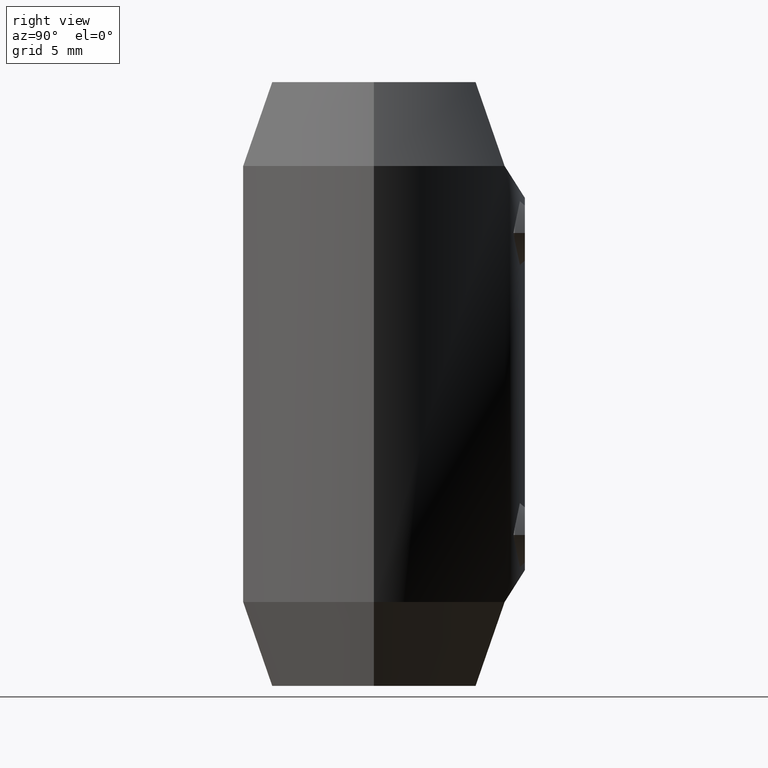
[diagram: clean part render]
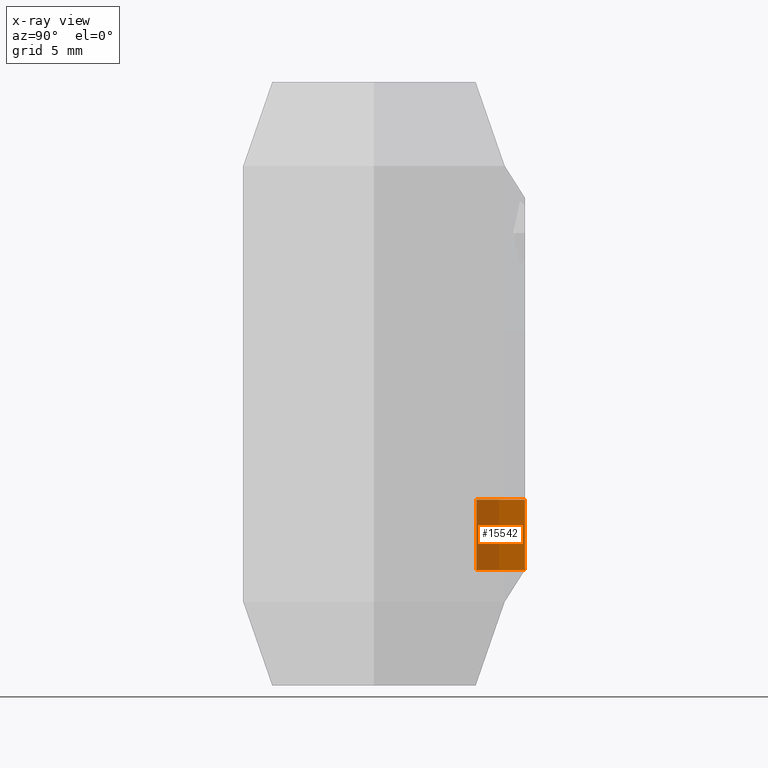
[diagram: x-ray — body ghosted, one internal face saturated and labeled with its STEP entity id]
A machine part, right view, then the same camera in x-ray: the body is ghosted and one INTERNAL B-rep face — a face not visible from any outside direction — is saturated and labeled: STEP entity #15542.
In plain terms, the highlighted cylindrical surface (edge-blend (fillet) strip) has radius 2.1 mm, axis along (0, 1, 0).
Its self-contained STEP definition (entity closure, byte-faithful):
#282 = CARTESIAN_POINT ( 'NONE',  ( -1.991972582969570915, 5.765862643259869635, -9.679045374295219162 ) ) ;
#335 = CARTESIAN_POINT ( 'NONE',  ( -3.611607927376616936E-15, 6.099999999999999645, -6.900000000000001243 ) ) ;
#399 = CARTESIAN_POINT ( 'NONE',  ( -0.1398720103953934868, 6.100000000000001421, -6.900000000000002132 ) ) ;
#403 = EDGE_CURVE ( 'NONE', #14587, #1762, #14515, .T. ) ;
#450 = CARTESIAN_POINT ( 'NONE',  ( -1.283287939962843405, 5.964603744288758946, -10.66786846278035483 ) ) ;
#1005 = CARTESIAN_POINT ( 'NONE',  ( -2.086513239613602355, 8.754840634587448989, -8.725048273204425442 ) ) ;
#1108 = CARTESIAN_POINT ( 'NONE',  ( -2.099943563489800269, 8.751584829818270350, -8.861637844470349634 ) ) ;
#1283 = B_SPLINE_CURVE_WITH_KNOTS ( 'NONE', 3,
 ( #9967, #15140, #4040, #1615, #9112, #3934, #7733, #450, #15293, #6631, #14056, #282, #4147, #1517, #12663, #6572, #2884, #12608, #15239, #10230, #1671, #11428, #13847, #10288, #2942, #5340, #10399, #7792, #399, #335 ),
 .UNSPECIFIED., .F., .F.,
 ( 4, 2, 2, 2, 2, 2, 2, 2, 2, 2, 2, 2, 2, 2, 4 ),
 ( 0.006616579734925386209, 0.007030014291512964170, 0.007443448848100541262, 0.007856883404688120090, 0.008270317961275697183, 0.009097187074450856573, 0.009510621631038437135, 0.009924056187626015962, 0.01033749074421359652, 0.01075092530080117535, 0.01157779441397633474, 0.01199122897056391357, 0.01240466352715149240, 0.01281809808373907296, 0.01323153264032665179 ),
 .UNSPECIFIED. ) ;
#1367 = CARTESIAN_POINT ( 'NONE',  ( -3.049785664642882860E-15, 6.099999999999999645, -11.09999999999999787 ) ) ;
#1517 = CARTESIAN_POINT ( 'NONE',  ( -2.086023711472762887, 5.732305899723283638, -9.278240127168162488 ) ) ;
#1615 = CARTESIAN_POINT ( 'NONE',  ( -0.5490742274861850625, 6.076771396057661256, -11.03170151540581934 ) ) ;
#1663 = VERTEX_POINT ( 'NONE', #8315 ) ;
#1671 = CARTESIAN_POINT ( 'NONE',  ( -1.677514676781607372, 5.868161944235677829, -7.707696466543613845 ) ) ;
#1762 = VERTEX_POINT ( 'NONE', #14879 ) ;
#2068 = CARTESIAN_POINT ( 'NONE',  ( -3.049370529876909686E-15, 11.00000000000000000, -11.09999999999999787 ) ) ;
#2239 = CARTESIAN_POINT ( 'NONE',  ( -1.679477079426144437, 8.844114957262966925, -10.29043885399485170 ) ) ;
#2295 = CARTESIAN_POINT ( 'NONE',  ( -1.992583815650146750, 8.776818335132283266, -9.677230764306219868 ) ) ;
#2557 = CARTESIAN_POINT ( 'NONE',  ( -3.284583562078037481E-15, 8.999999999999998224, -6.900000000000001243 ) ) ;
#2639 = DIRECTION ( 'NONE',  ( -0.000000000000000000, 1.000000000000000000, -0.000000000000000000 ) ) ;
#2884 = CARTESIAN_POINT ( 'NONE',  ( -2.086402656800276478, 5.732168553545289313, -8.724116958090908369 ) ) ;
#2892 = FACE_OUTER_BOUND ( 'NONE', #8310, .T. ) ;
#2942 = CARTESIAN_POINT ( 'NONE',  ( -0.9347785483951039920, 6.029313812940078066, -7.114491996646135519 ) ) ;
#3574 = CARTESIAN_POINT ( 'NONE',  ( -0.6779847307117615740, 8.975330091746489103, -10.99228251151783375 ) ) ;
#3934 = CARTESIAN_POINT ( 'NONE',  ( -0.9339188668850350039, 6.029439983906691225, -10.88590694804221748 ) ) ;
#4040 = CARTESIAN_POINT ( 'NONE',  ( -0.2766940387029595549, 6.095250078231439161, -11.08632067619963379 ) ) ;
#4147 = CARTESIAN_POINT ( 'NONE',  ( -2.031921486498735607, 5.751705914381727958, -9.547912005615797781 ) ) ;
#4769 = CARTESIAN_POINT ( 'NONE',  ( -0.9316293612701153082, 8.952557192451092050, -10.88703991319673747 ) ) ;
#4825 = CARTESIAN_POINT ( 'NONE',  ( -0.2767516183469454494, 8.996761130966875797, -11.08624142019772663 ) ) ;
#5225 = ORIENTED_EDGE ( 'NONE', *, *, #403, .T. ) ;
#5340 = CARTESIAN_POINT ( 'NONE',  ( -0.6806303671474535077, 6.063264656335430658, -7.008595051585975177 ) ) ;
#5830 = CYLINDRICAL_SURFACE ( 'NONE', #10246, 2.099999999999997868 ) ;
#5957 = CARTESIAN_POINT ( 'NONE',  ( -3.284583562078037481E-15, 8.999999999999998224, -6.900000000000001243 ) ) ;
#6018 = CARTESIAN_POINT ( 'NONE',  ( -0.5470401376359104173, 8.984378074955957416, -11.03217661865831900 ) ) ;
#6168 = CARTESIAN_POINT ( 'NONE',  ( -1.834002307007757793, 8.811819161734465666, -10.05951055678787220 ) ) ;
#6572 = CARTESIAN_POINT ( 'NONE',  ( -2.099973329607419448, 5.727138204700679580, -8.861218232586990595 ) ) ;
#6631 = CARTESIAN_POINT ( 'NONE',  ( -1.679304693986150676, 5.867701162687668948, -10.29042708851553201 ) ) ;
#6935 = EDGE_CURVE ( 'NONE', #15095, #1762, #8298, .T. ) ;
#7266 = CARTESIAN_POINT ( 'NONE',  ( -3.049369482360552843E-15, 8.999999999999998224, -11.09999999999999787 ) ) ;
#7612 = DIRECTION ( 'NONE',  ( 0.000000000000000000, 0.000000000000000000, 1.000000000000000000 ) ) ;
#7733 = CARTESIAN_POINT ( 'NONE',  ( -1.056699912769348604, 6.008886008037662485, -10.81988967806969448 ) ) ;
#7792 = CARTESIAN_POINT ( 'NONE',  ( -0.2772286848274425064, 6.095194765550284721, -6.913844805152664641 ) ) ;
#7806 = ORIENTED_EDGE ( 'NONE', *, *, #9728, .F. ) ;
#8082 = DIRECTION ( 'NONE',  ( -0.000000000000000000, 1.000000000000000000, -0.000000000000000000 ) ) ;
#8298 = B_SPLINE_CURVE_WITH_KNOTS ( 'NONE', 3,
 ( #5957, #14736, #10923, #14635, #9782, #12202, #15876, #14789, #8533, #12353, #8591, #16028, #8476, #1005, #1108, #13602, #9729, #12256, #2295, #6168, #2239, #14835, #9821, #10976, #4769, #3574, #6018, #4825, #14681, #7266 ),
 .UNSPECIFIED., .F., .F.,
 ( 4, 2, 2, 2, 2, 2, 2, 2, 2, 2, 2, 2, 2, 2, 4 ),
 ( 2.133275734245097971E-20, 0.0004117705123801819532, 0.0008235410247603639064, 0.001235311537140545805, 0.001647082049520727813, 0.002470623074281093779, 0.002882393586661277304, 0.003294164099041460830, 0.003705934611421643921, 0.004117705123801827446, 0.004941246148562189293, 0.005353016660942371517, 0.005764787173322554609, 0.006176557685702737700, 0.006588328198082919925 ),
 .UNSPECIFIED. ) ;
#8310 = EDGE_LOOP ( 'NONE', ( #7806, #5225, #12893, #14383 ) ) ;
#8315 = CARTESIAN_POINT ( 'NONE',  ( -3.611607927376616936E-15, 6.099999999999999645, -6.900000000000001243 ) ) ;
#8476 = CARTESIAN_POINT ( 'NONE',  ( -2.032416657549456662, 8.767556932590853336, -8.453723072731227361 ) ) ;
#8533 = CARTESIAN_POINT ( 'NONE',  ( -1.388870823506893393, 8.892727693654389753, -7.418967684159895271 ) ) ;
#8591 = CARTESIAN_POINT ( 'NONE',  ( -1.834552045170093848, 8.811693943136452489, -7.942089845858673947 ) ) ;
#9112 = CARTESIAN_POINT ( 'NONE',  ( -0.6804258870561684658, 6.063280595657798422, -10.99144924083481278 ) ) ;
#9710 = VECTOR ( 'NONE', #2639, 1000.000000000000000 ) ;
#9728 = EDGE_CURVE ( 'NONE', #14587, #1663, #1283, .T. ) ;
#9729 = CARTESIAN_POINT ( 'NONE',  ( -2.086273663307478543, 8.754897343847833469, -9.276360657184758551 ) ) ;
#9782 = CARTESIAN_POINT ( 'NONE',  ( -0.6788506439432945294, 8.975268029849280182, -7.007992474951221240 ) ) ;
#9821 = CARTESIAN_POINT ( 'NONE',  ( -1.281731857945850095, 8.908999664385762074, -10.66908080314085083 ) ) ;
#9967 = CARTESIAN_POINT ( 'NONE',  ( -3.049785664642882860E-15, 6.099999999999999645, -11.09999999999999787 ) ) ;
#9997 = CARTESIAN_POINT ( 'NONE',  ( -3.306546357697853339E-15, 11.00000000000000000, -9.000000000000000000 ) ) ;
#10230 = CARTESIAN_POINT ( 'NONE',  ( -1.833274319890804138, 5.819058143546866901, -7.939764001563725415 ) ) ;
#10246 = AXIS2_PLACEMENT_3D ( 'NONE', #9997, #13726, #7612 ) ;
#10288 = CARTESIAN_POINT ( 'NONE',  ( -1.054839984251293883, 6.009214115631130504, -7.179031959849344169 ) ) ;
#10390 = EDGE_CURVE ( 'NONE', #1663, #15095, #13377, .T. ) ;
#10399 = CARTESIAN_POINT ( 'NONE',  ( -0.5468334760507993497, 6.076942333373990479, -6.967791253303471599 ) ) ;
#10679 = VECTOR ( 'NONE', #8082, 1000.000000000000000 ) ;
#10923 = CARTESIAN_POINT ( 'NONE',  ( -0.2761163760081279950, 8.996771549064181528, -6.913716165937175084 ) ) ;
#10976 = CARTESIAN_POINT ( 'NONE',  ( -1.054657655711846775, 8.938725233776196433, -10.82108882604199884 ) ) ;
#11428 = CARTESIAN_POINT ( 'NONE',  ( -1.388804101475721087, 5.940628602376402334, -7.418940498882283130 ) ) ;
#12202 = CARTESIAN_POINT ( 'NONE',  ( -0.9329680171625295282, 8.952421185543531834, -7.113600557786076806 ) ) ;
#12256 = CARTESIAN_POINT ( 'NONE',  ( -2.032413439143195610, 8.767557294475711416, -9.546084813412829106 ) ) ;
#12353 = CARTESIAN_POINT ( 'NONE',  ( -1.678295236407310931, 8.844297433428975452, -7.708556430992709707 ) ) ;
#12608 = CARTESIAN_POINT ( 'NONE',  ( -2.032088221098061531, 5.751647575628333620, -8.452455517066619350 ) ) ;
#12663 = CARTESIAN_POINT ( 'NONE',  ( -2.100026592610615417, 5.727118674441176616, -9.137973455262235589 ) ) ;
#12893 = ORIENTED_EDGE ( 'NONE', *, *, #6935, .F. ) ;
#13377 = LINE ( 'NONE', #15017, #9710 ) ;
#13602 = CARTESIAN_POINT ( 'NONE',  ( -2.100056084944829760, 8.751557829520050902, -9.136643682661317101 ) ) ;
#13726 = DIRECTION ( 'NONE',  ( -0.000000000000000000, 1.000000000000000000, -0.000000000000000000 ) ) ;
#13847 = CARTESIAN_POINT ( 'NONE',  ( -1.281576498003167419, 5.964973039305511371, -7.330816464437979185 ) ) ;
#14056 = CARTESIAN_POINT ( 'NONE',  ( -1.832919555512757315, 5.819184914744292669, -10.06143085956443350 ) ) ;
#14383 = ORIENTED_EDGE ( 'NONE', *, *, #10390, .F. ) ;
#14515 = LINE ( 'NONE', #2068, #10679 ) ;
#14587 = VERTEX_POINT ( 'NONE', #1367 ) ;
#14635 = CARTESIAN_POINT ( 'NONE',  ( -0.5451947702822904640, 8.984481132575623974, -6.967370384986827148 ) ) ;
#14681 = CARTESIAN_POINT ( 'NONE',  ( -0.1373305425714265726, 9.000000000000000000, -11.09999999999999787 ) ) ;
#14736 = CARTESIAN_POINT ( 'NONE',  ( -0.1392689500587757645, 8.999999999999996447, -6.900000000000000355 ) ) ;
#14789 = CARTESIAN_POINT ( 'NONE',  ( -1.281344237653956553, 8.909060968035033667, -7.330582857590579593 ) ) ;
#14835 = CARTESIAN_POINT ( 'NONE',  ( -1.387261852917381910, 8.892989244952470784, -10.58255283497726040 ) ) ;
#14879 = CARTESIAN_POINT ( 'NONE',  ( -3.049369482360552843E-15, 8.999999999999998224, -11.09999999999999787 ) ) ;
#15017 = CARTESIAN_POINT ( 'NONE',  ( -3.306546357697853339E-15, 11.00000000000000000, -6.900000000000001243 ) ) ;
#15095 = VERTEX_POINT ( 'NONE', #2557 ) ;
#15140 = CARTESIAN_POINT ( 'NONE',  ( -0.1377774585293745635, 6.099999999999999645, -11.09999999999999787 ) ) ;
#15239 = CARTESIAN_POINT ( 'NONE',  ( -1.991215773618427720, 5.766120259358168632, -8.318965111774012655 ) ) ;
#15293 = CARTESIAN_POINT ( 'NONE',  ( -1.388403098410998293, 5.940734982625069271, -10.58150353076666761 ) ) ;
#15542 = ADVANCED_FACE ( 'NONE', ( #2892 ), #5830, .F. ) ;
#15876 = CARTESIAN_POINT ( 'NONE',  ( -1.053413272499466480, 8.938877494677743840, -7.178155569742192377 ) ) ;
#16028 = CARTESIAN_POINT ( 'NONE',  ( -1.991843928111116213, 8.776983570939009383, -8.320848661037059557 ) ) ;